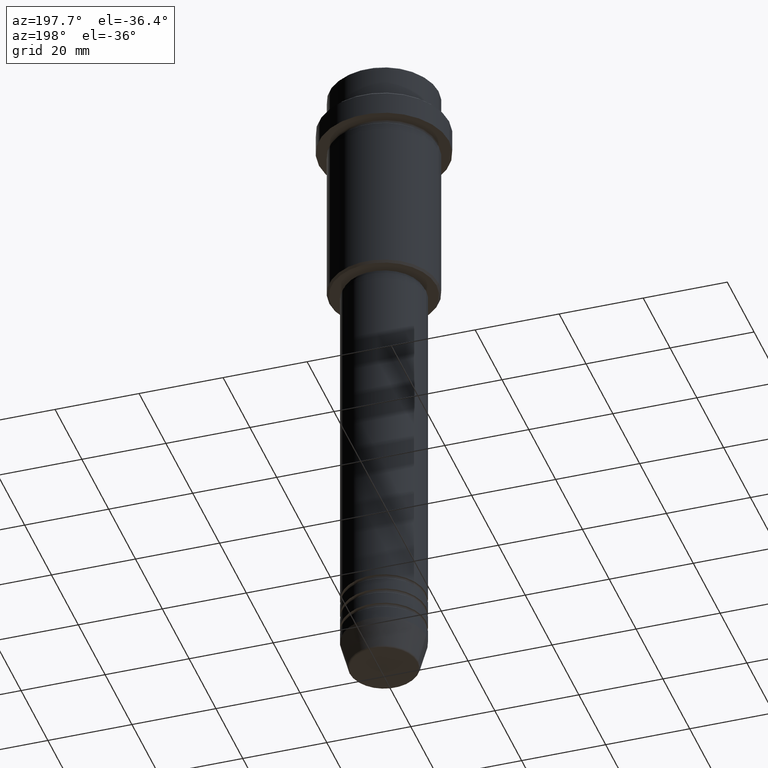
[diagram: clean part render]
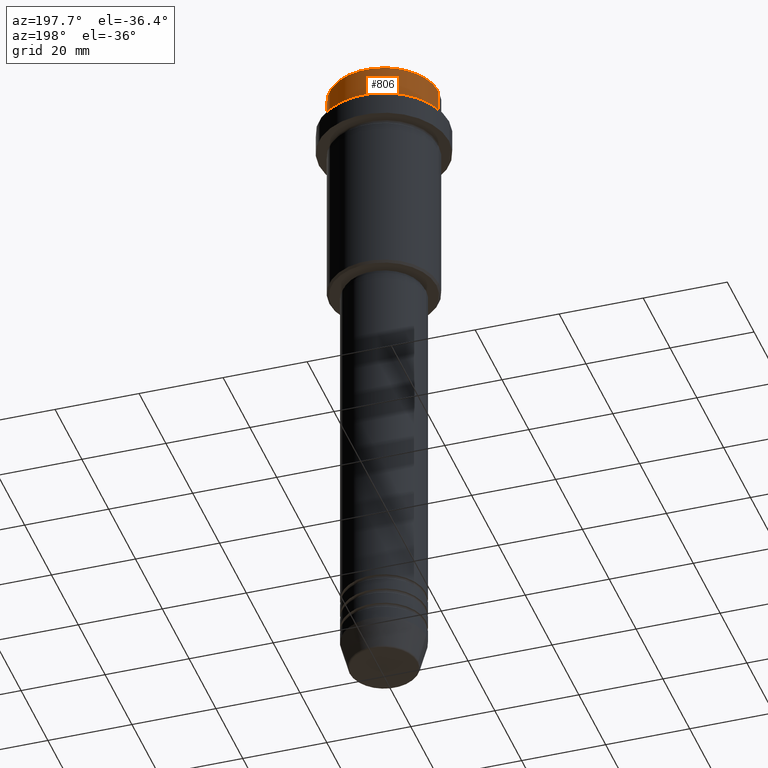
[diagram: same view with one face highlighted and labeled with its STEP entity id]
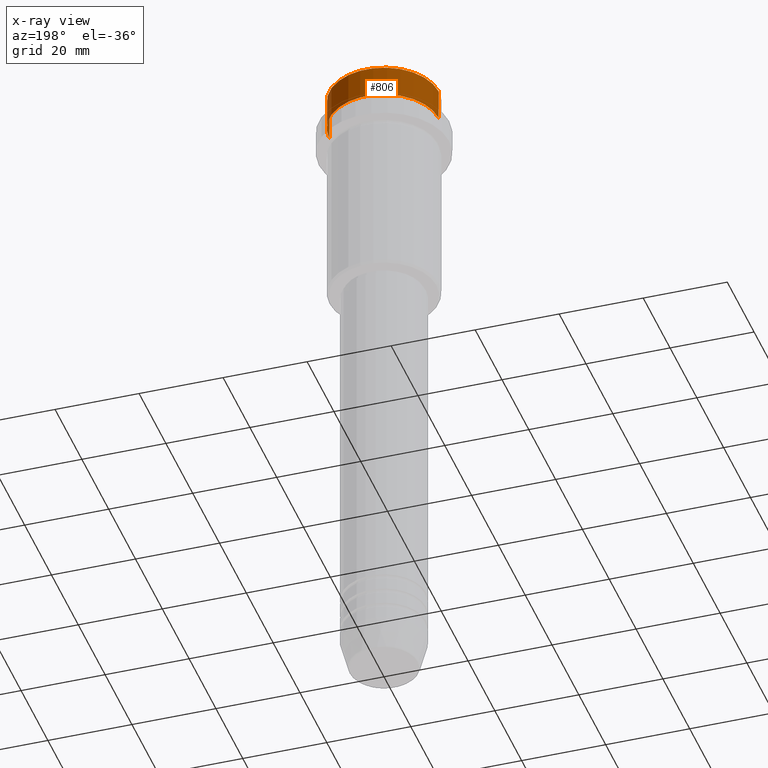
[diagram: x-ray of the same camera — body ghosted, the highlighted face saturated]
A machine part, auxiliary view. The second image highlights one B-rep face of the part: STEP entity #806.
The next image is the same camera in x-ray: the body ghosted, the highlighted face saturated — about 0% of this face is hidden behind the body in this view.
In plain terms, the highlighted cylindrical surface (partial cylindrical patch) has radius 13 mm, axis along (-0, -0, 1).
Its self-contained STEP definition (entity closure, byte-faithful):
#6 = EDGE_CURVE ( 'NONE', #1333, #1269, #595, .T. ) ;
#8 = DIRECTION ( 'NONE',  ( 1.000000000000000000, 0.000000000000000000, 0.000000000000000000 ) ) ;
#66 = CARTESIAN_POINT ( 'NONE',  ( -12.99999999999999822, 1.592040838891558898E-15, -7.999999999999998224 ) ) ;
#130 = FACE_OUTER_BOUND ( 'NONE', #249, .T. ) ;
#141 = CARTESIAN_POINT ( 'NONE',  ( 12.99999999999999822, 0.000000000000000000, -0.4999999999999900080 ) ) ;
#181 = DIRECTION ( 'NONE',  ( -0.000000000000000000, -0.000000000000000000, 1.000000000000000000 ) ) ;
#224 = CARTESIAN_POINT ( 'NONE',  ( -12.99999999999999822, 1.592040838891558898E-15, -0.4999999999999900080 ) ) ;
#249 = EDGE_LOOP ( 'NONE', ( #324, #922, #730, #967 ) ) ;
#262 = CARTESIAN_POINT ( 'NONE',  ( 12.99999999999999822, 0.000000000000000000, 0.000000000000000000 ) ) ;
#317 = CARTESIAN_POINT ( 'NONE',  ( 0.000000000000000000, 0.000000000000000000, -7.999999999999998224 ) ) ;
#324 = ORIENTED_EDGE ( 'NONE', *, *, #555, .T. ) ;
#386 = LINE ( 'NONE', #262, #449 ) ;
#393 = CARTESIAN_POINT ( 'NONE',  ( 0.000000000000000000, 0.000000000000000000, 0.000000000000000000 ) ) ;
#449 = VECTOR ( 'NONE', #181, 1000.000000000000000 ) ;
#458 = VERTEX_POINT ( 'NONE', #590 ) ;
#555 = EDGE_CURVE ( 'NONE', #458, #1333, #629, .T. ) ;
#590 = CARTESIAN_POINT ( 'NONE',  ( 12.99999999999999822, 0.000000000000000000, -7.999999999999998224 ) ) ;
#595 = LINE ( 'NONE', #814, #776 ) ;
#629 = CIRCLE ( 'NONE', #1015, 12.99999999999999822 ) ;
#644 = CARTESIAN_POINT ( 'NONE',  ( 0.000000000000000000, 0.000000000000000000, -0.4999999999999900080 ) ) ;
#677 = CYLINDRICAL_SURFACE ( 'NONE', #722, 12.99999999999999822 ) ;
#699 = DIRECTION ( 'NONE',  ( 1.000000000000000000, 0.000000000000000000, 0.000000000000000000 ) ) ;
#706 = EDGE_CURVE ( 'NONE', #1269, #1258, #1197, .T. ) ;
#722 = AXIS2_PLACEMENT_3D ( 'NONE', #393, #1260, #699 ) ;
#730 = ORIENTED_EDGE ( 'NONE', *, *, #706, .T. ) ;
#776 = VECTOR ( 'NONE', #1166, 1000.000000000000000 ) ;
#806 = ADVANCED_FACE ( 'NONE', ( #130 ), #677, .T. ) ;
#814 = CARTESIAN_POINT ( 'NONE',  ( -12.99999999999999822, 1.592040838891558898E-15, 0.000000000000000000 ) ) ;
#866 = DIRECTION ( 'NONE',  ( -0.000000000000000000, -0.000000000000000000, 1.000000000000000000 ) ) ;
#873 = DIRECTION ( 'NONE',  ( 0.000000000000000000, 0.000000000000000000, -1.000000000000000000 ) ) ;
#922 = ORIENTED_EDGE ( 'NONE', *, *, #6, .T. ) ;
#967 = ORIENTED_EDGE ( 'NONE', *, *, #1365, .F. ) ;
#1015 = AXIS2_PLACEMENT_3D ( 'NONE', #317, #866, #8 ) ;
#1166 = DIRECTION ( 'NONE',  ( -0.000000000000000000, -0.000000000000000000, 1.000000000000000000 ) ) ;
#1197 = CIRCLE ( 'NONE', #1361, 12.99999999999999822 ) ;
#1215 = DIRECTION ( 'NONE',  ( 1.000000000000000000, 0.000000000000000000, 0.000000000000000000 ) ) ;
#1258 = VERTEX_POINT ( 'NONE', #141 ) ;
#1260 = DIRECTION ( 'NONE',  ( -0.000000000000000000, -0.000000000000000000, 1.000000000000000000 ) ) ;
#1269 = VERTEX_POINT ( 'NONE', #224 ) ;
#1333 = VERTEX_POINT ( 'NONE', #66 ) ;
#1361 = AXIS2_PLACEMENT_3D ( 'NONE', #644, #873, #1215 ) ;
#1365 = EDGE_CURVE ( 'NONE', #458, #1258, #386, .T. ) ;